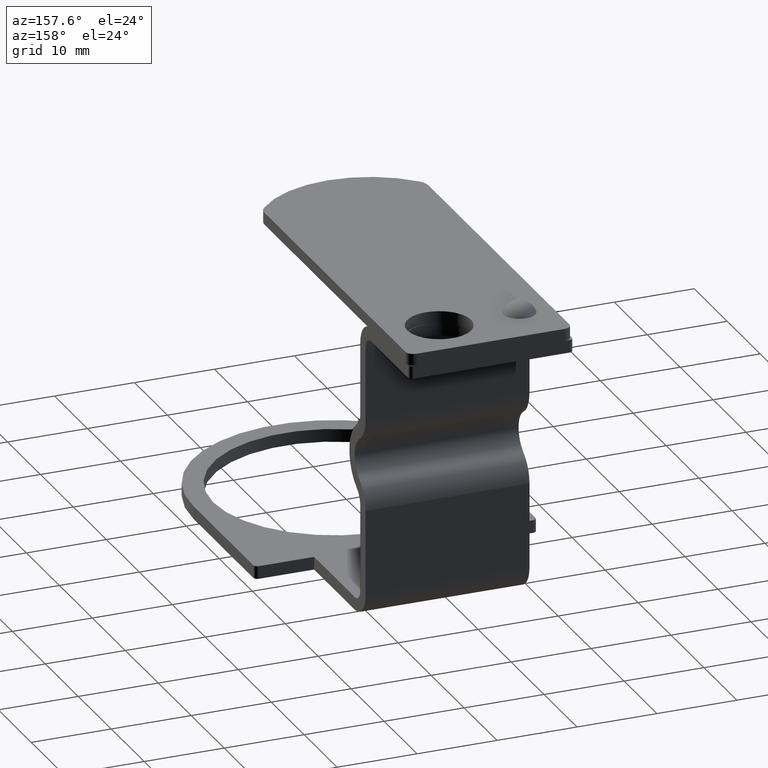
[diagram: clean part render]
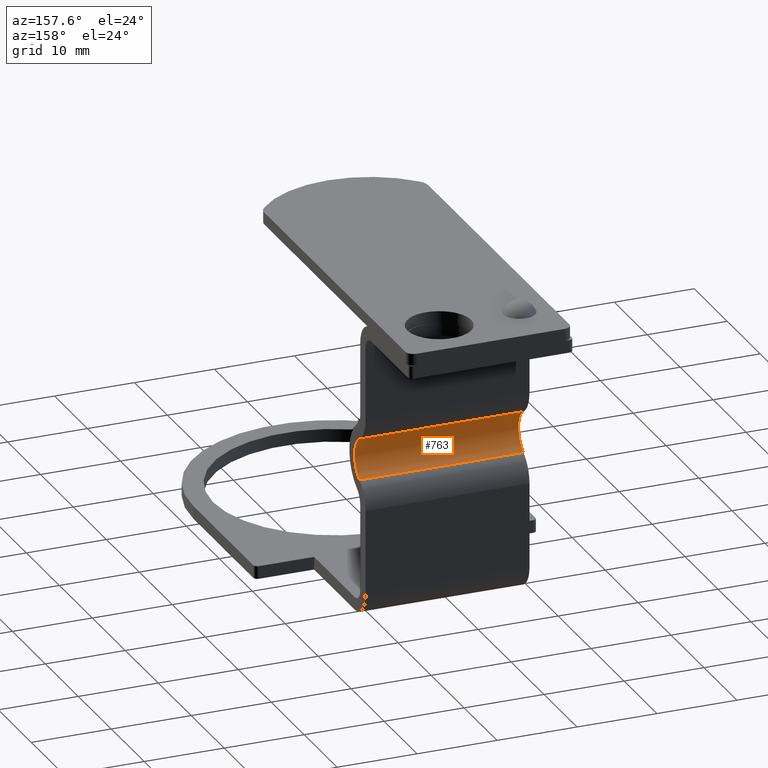
[diagram: same view with one face highlighted and labeled with its STEP entity id]
A machine part, auxiliary view. The second image highlights one B-rep face of the part: STEP entity #763.
In plain terms, the highlighted cylindrical surface (edge-blend (fillet) strip) has radius 3 mm, axis along (-1, 0, 0).
Its self-contained STEP definition (entity closure, byte-faithful):
#417=CARTESIAN_POINT('',(12.137544175698896,13.469854203215919,17.009925643347277));
#418=VERTEX_POINT('',#417);
#426=CARTESIAN_POINT('',(12.137544175698896,13.469854203215919,22.190074356652723));
#427=VERTEX_POINT('',#426);
#428=CARTESIAN_POINT('',(12.137544175698896,14.983629228445887,19.599999999999998));
#429=DIRECTION('',(-1.0,-7.248127E-017,1.240157E-016));
#430=DIRECTION('',(-1.436434E-016,0.504591675076656,-0.863358118884241));
#431=AXIS2_PLACEMENT_3D('',#428,#429,#430);
#432=CIRCLE('',#431,3.000000000000001);
#433=EDGE_CURVE('',#418,#427,#432,.T.);
#526=CARTESIAN_POINT('',(-8.362455824301112,13.469854203215919,22.190074356652723));
#527=VERTEX_POINT('',#526);
#535=CARTESIAN_POINT('',(-8.362455824301112,13.469854203215919,17.009925643347277));
#536=VERTEX_POINT('',#535);
#537=CARTESIAN_POINT('',(-8.362455824301108,14.983629228445887,19.599999999999998));
#538=DIRECTION('',(-1.0,-7.248127E-017,1.240157E-016));
#539=DIRECTION('',(-1.436434E-016,0.504591675076656,-0.863358118884241));
#540=AXIS2_PLACEMENT_3D('',#537,#538,#539);
#541=CIRCLE('',#540,3.000000000000001);
#542=EDGE_CURVE('',#536,#527,#541,.T.);
#736=CARTESIAN_POINT('',(12.137544175698896,13.469854203215919,17.009925643347277));
#737=DIRECTION('',(-1.0,0.0,0.0));
#738=VECTOR('',#737,20.500000000000007);
#739=LINE('',#736,#738);
#740=EDGE_CURVE('',#418,#536,#739,.T.);
#747=CARTESIAN_POINT('',(12.137544175698896,14.983629228445887,19.599999999999998));
#748=DIRECTION('',(-1.0,0.0,0.0));
#749=DIRECTION('',(0.0,0.504591675076656,-0.863358118884241));
#750=AXIS2_PLACEMENT_3D('',#747,#748,#749);
#751=CYLINDRICAL_SURFACE('',#750,3.000000000000001);
#752=ORIENTED_EDGE('',*,*,#542,.T.);
#753=CARTESIAN_POINT('',(12.137544175698896,13.469854203215919,22.190074356652723));
#754=DIRECTION('',(-1.0,0.0,0.0));
#755=VECTOR('',#754,20.500000000000007);
#756=LINE('',#753,#755);
#757=EDGE_CURVE('',#427,#527,#756,.T.);
#758=ORIENTED_EDGE('',*,*,#757,.F.);
#759=ORIENTED_EDGE('',*,*,#433,.F.);
#760=ORIENTED_EDGE('',*,*,#740,.T.);
#761=EDGE_LOOP('',(#752,#758,#759,#760));
#762=FACE_OUTER_BOUND('',#761,.T.);
#763=ADVANCED_FACE('',(#762),#751,.F.);